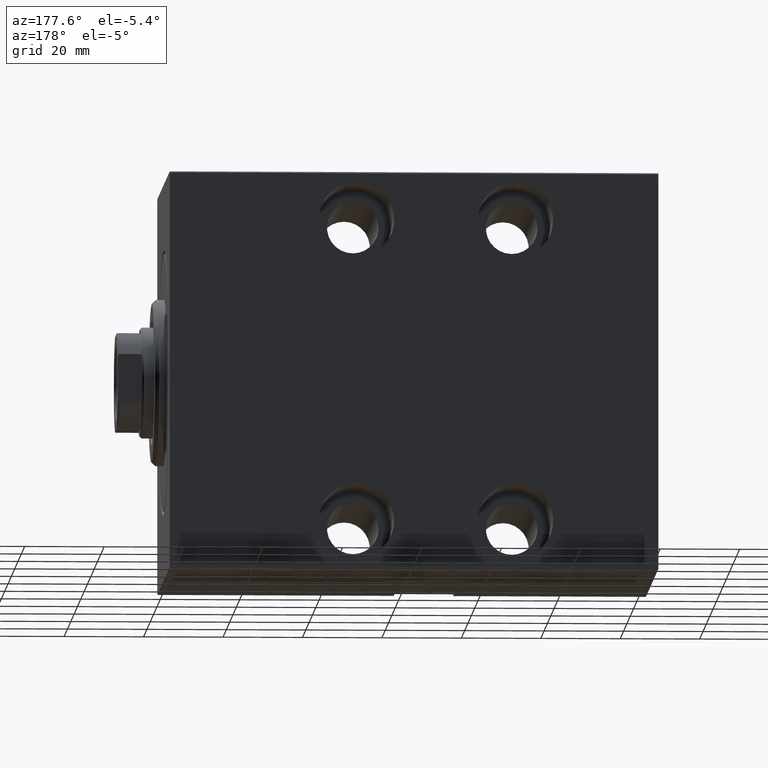
[diagram: clean part render]
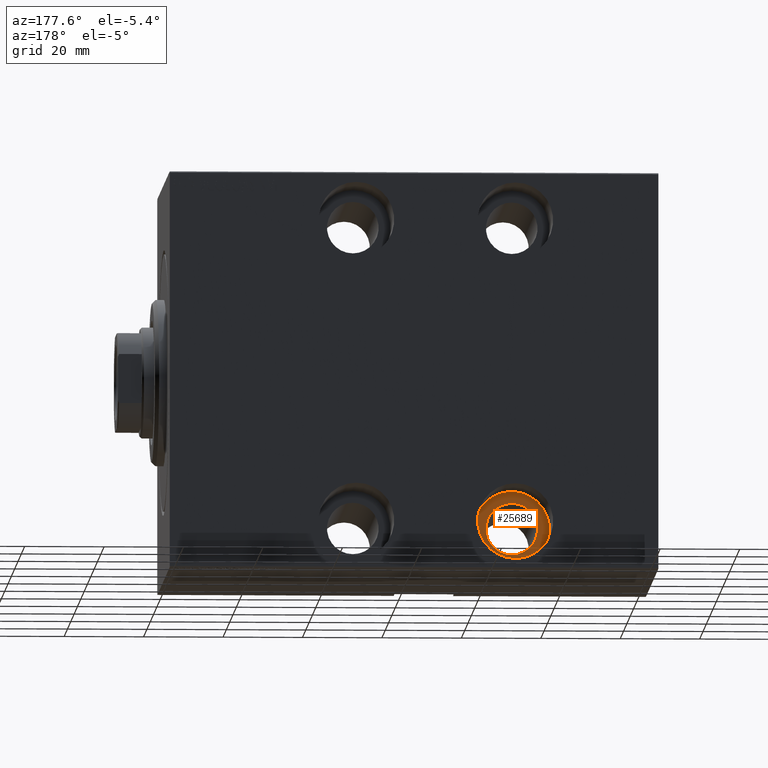
[diagram: same view with one face highlighted and labeled with its STEP entity id]
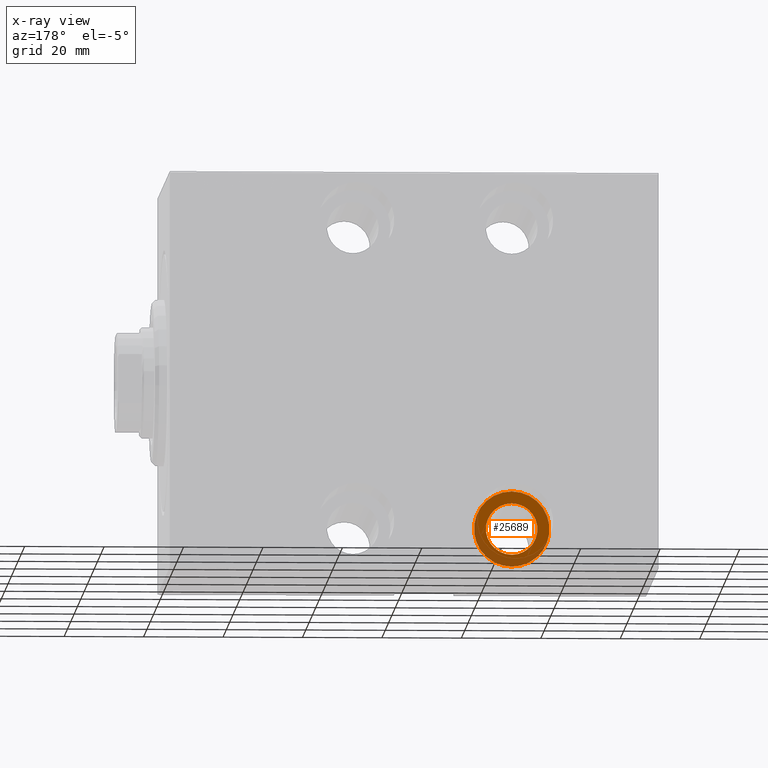
[diagram: x-ray of the same camera — body ghosted, the highlighted face saturated]
A machine part, auxiliary view. The second image highlights one B-rep face of the part: STEP entity #25689.
The next image is the same camera in x-ray: the body ghosted, the highlighted face saturated — about 29% of this face is hidden behind the body in this view.
In plain terms, the highlighted planar face has unit normal (0, 1, 0).
Its self-contained STEP definition (entity closure, byte-faithful):
#1444 = CIRCLE ( 'NONE', #16808, 6.500000000000005329 ) ;
#2819 = FACE_OUTER_BOUND ( 'NONE', #26303, .T. ) ;
#3528 = VERTEX_POINT ( 'NONE', #29741 ) ;
#4705 = VERTEX_POINT ( 'NONE', #14876 ) ;
#5309 = EDGE_LOOP ( 'NONE', ( #31672, #9184 ) ) ;
#6131 = CARTESIAN_POINT ( 'NONE',  ( 87.00000000000002842, -15.50000000000000000, -47.50000000000000000 ) ) ;
#6987 = CIRCLE ( 'NONE', #34225, 6.500000000000005329 ) ;
#7094 = DIRECTION ( 'NONE',  ( 0.000000000000000000, -1.000000000000000000, 0.000000000000000000 ) ) ;
#7394 = VERTEX_POINT ( 'NONE', #41418 ) ;
#9184 = ORIENTED_EDGE ( 'NONE', *, *, #36136, .T. ) ;
#9426 = DIRECTION ( 'NONE',  ( 0.000000000000000000, -1.000000000000000000, 0.000000000000000000 ) ) ;
#10818 = DIRECTION ( 'NONE',  ( 0.000000000000000000, 0.000000000000000000, -1.000000000000000000 ) ) ;
#11873 = CIRCLE ( 'NONE', #33495, 9.499999999999994671 ) ;
#11921 = AXIS2_PLACEMENT_3D ( 'NONE', #37054, #7094, #10818 ) ;
#12718 = DIRECTION ( 'NONE',  ( 0.000000000000000000, 0.000000000000000000, -1.000000000000000000 ) ) ;
#13085 = FACE_BOUND ( 'NONE', #5309, .T. ) ;
#14220 = EDGE_CURVE ( 'NONE', #39271, #4705, #29398, .T. ) ;
#14876 = CARTESIAN_POINT ( 'NONE',  ( 87.00000000000002842, -15.50000000000000000, -28.50000000000001066 ) ) ;
#16056 = DIRECTION ( 'NONE',  ( 0.000000000000000000, 0.000000000000000000, -1.000000000000000000 ) ) ;
#16727 = ORIENTED_EDGE ( 'NONE', *, *, #14220, .T. ) ;
#16808 = AXIS2_PLACEMENT_3D ( 'NONE', #21217, #17712, #41536 ) ;
#17712 = DIRECTION ( 'NONE',  ( -0.000000000000000000, 1.000000000000000000, -0.000000000000000000 ) ) ;
#20066 = PLANE ( 'NONE',  #20106 ) ;
#20106 = AXIS2_PLACEMENT_3D ( 'NONE', #33409, #26429, #39767 ) ;
#21217 = CARTESIAN_POINT ( 'NONE',  ( 87.00000000000002842, -15.50000000000000000, -38.00000000000000711 ) ) ;
#24519 = ORIENTED_EDGE ( 'NONE', *, *, #34660, .T. ) ;
#24803 = CARTESIAN_POINT ( 'NONE',  ( 87.00000000000002842, -15.50000000000000000, -38.00000000000000711 ) ) ;
#25689 = ADVANCED_FACE ( 'NONE', ( #2819, #13085 ), #20066, .T. ) ;
#26303 = EDGE_LOOP ( 'NONE', ( #16727, #24519 ) ) ;
#26429 = DIRECTION ( 'NONE',  ( 0.000000000000000000, -1.000000000000000000, 0.000000000000000000 ) ) ;
#29398 = CIRCLE ( 'NONE', #11921, 9.499999999999994671 ) ;
#29741 = CARTESIAN_POINT ( 'NONE',  ( 87.00000000000002842, -15.50000000000000000, -44.50000000000000711 ) ) ;
#31672 = ORIENTED_EDGE ( 'NONE', *, *, #33089, .T. ) ;
#32672 = CARTESIAN_POINT ( 'NONE',  ( 87.00000000000002842, -15.50000000000000000, -38.00000000000000711 ) ) ;
#33089 = EDGE_CURVE ( 'NONE', #7394, #3528, #1444, .T. ) ;
#33409 = CARTESIAN_POINT ( 'NONE',  ( 87.00000000000002842, -15.50000000000000000, -38.00000000000000711 ) ) ;
#33495 = AXIS2_PLACEMENT_3D ( 'NONE', #24803, #9426, #12718 ) ;
#34225 = AXIS2_PLACEMENT_3D ( 'NONE', #32672, #38604, #16056 ) ;
#34660 = EDGE_CURVE ( 'NONE', #4705, #39271, #11873, .T. ) ;
#36136 = EDGE_CURVE ( 'NONE', #3528, #7394, #6987, .T. ) ;
#37054 = CARTESIAN_POINT ( 'NONE',  ( 87.00000000000002842, -15.50000000000000000, -38.00000000000000711 ) ) ;
#38604 = DIRECTION ( 'NONE',  ( -0.000000000000000000, 1.000000000000000000, -0.000000000000000000 ) ) ;
#39271 = VERTEX_POINT ( 'NONE', #6131 ) ;
#39767 = DIRECTION ( 'NONE',  ( 0.000000000000000000, -0.000000000000000000, -1.000000000000000000 ) ) ;
#41418 = CARTESIAN_POINT ( 'NONE',  ( 87.00000000000002842, -15.50000000000000000, -31.50000000000000000 ) ) ;
#41536 = DIRECTION ( 'NONE',  ( 0.000000000000000000, 0.000000000000000000, -1.000000000000000000 ) ) ;